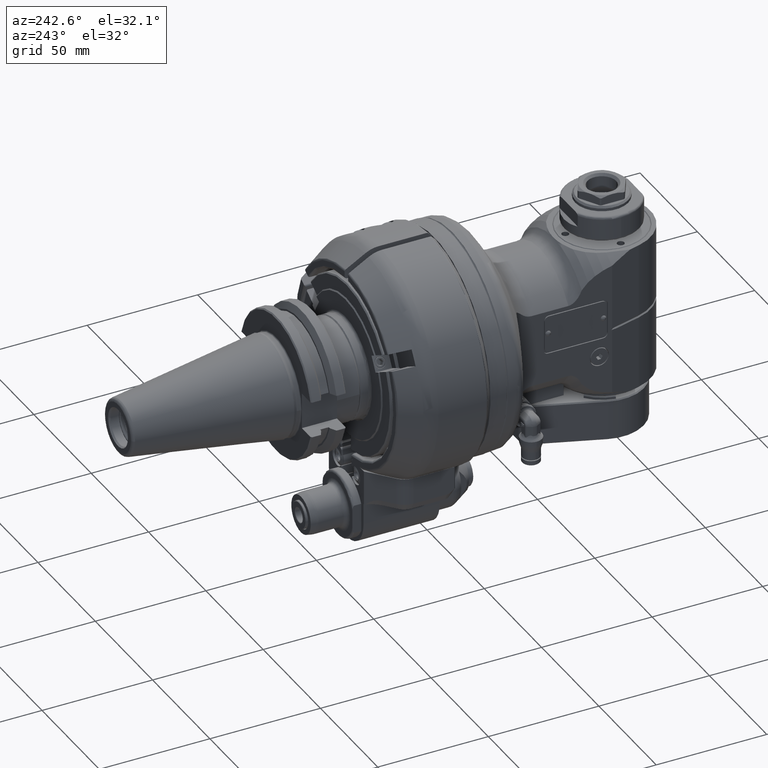
[diagram: clean part render]
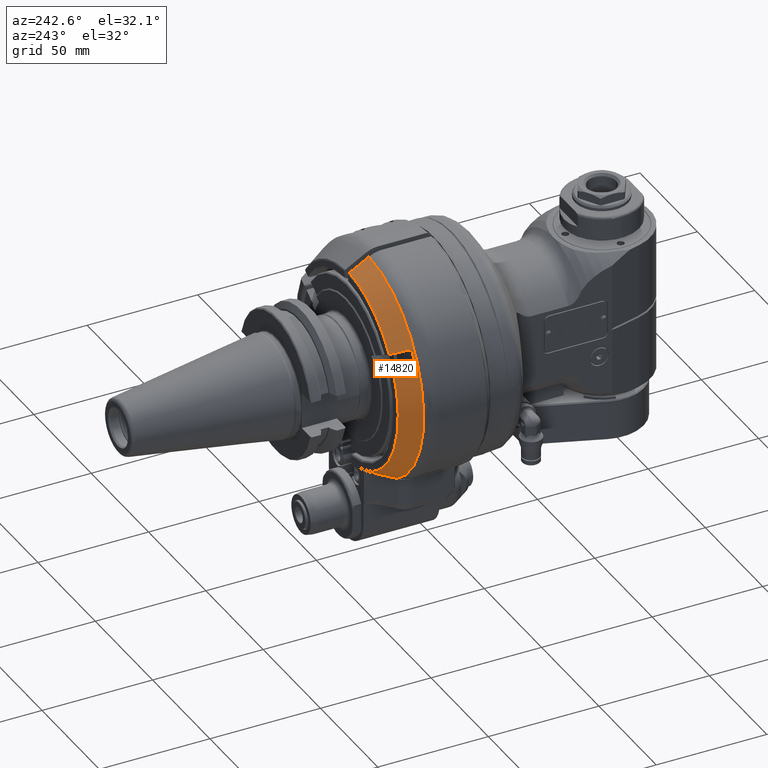
[diagram: same view with one face highlighted and labeled with its STEP entity id]
A machine part, auxiliary view. The second image highlights one B-rep face of the part: STEP entity #14820.
In plain terms, the highlighted conical surface has half-angle 30 deg.
Its self-contained STEP definition (entity closure, byte-faithful):
#195=B_SPLINE_CURVE_WITH_KNOTS('',3,(#27565,#27566,#27567,#27568,#27569,
#27570,#27571,#27572,#27573,#27574),.UNSPECIFIED.,.F.,.F.,(4,3,3,4),(0.,
0.3333333333333,0.6666666666667,0.999997659970445),.UNSPECIFIED.);
#199=B_SPLINE_CURVE_WITH_KNOTS('',3,(#27707,#27708,#27709,#27710,#27711,
#27712,#27713,#27714,#27715,#27716),.UNSPECIFIED.,.F.,.F.,(4,3,3,4),(7.66596114732898E-6,
0.3333333333333,0.6666666666667,1.),.UNSPECIFIED.);
#200=B_SPLINE_CURVE_WITH_KNOTS('',3,(#27720,#27721,#27722,#27723,#27724,
#27725,#27726,#27727,#27728,#27729),.UNSPECIFIED.,.F.,.F.,(4,3,3,4),(0.,
0.3333333333333,0.6666666666667,0.999992857018884),.UNSPECIFIED.);
#451=(
BOUNDED_CURVE()
B_SPLINE_CURVE(2,(#27641,#27642,#27643),.UNSPECIFIED.,.F.,.F.)
B_SPLINE_CURVE_WITH_KNOTS((3,3),(2.8844916667244,4.73034461921109),
 .UNSPECIFIED.)
CURVE()
GEOMETRIC_REPRESENTATION_ITEM()
RATIONAL_B_SPLINE_CURVE((1.03298555452386,1.03049774868244,1.01131829580632))
REPRESENTATION_ITEM('')
);
#764=CONICAL_SURFACE('',#16422,46.84048999,0.523598775598299);
#3668=FACE_OUTER_BOUND('',#4681,.T.);
#4681=EDGE_LOOP('',(#12548,#12549,#12550,#12551,#12552,#12553,#12554,#12555));
#5605=CIRCLE('',#16419,49.39230484541);
#5607=CIRCLE('',#16423,44.28867513459);
#5608=CIRCLE('',#16424,48.90747728811);
#5609=CIRCLE('',#16425,44.28867513459);
#6870=VERTEX_POINT('',#27562);
#6871=VERTEX_POINT('',#27564);
#6874=VERTEX_POINT('',#27588);
#6875=VERTEX_POINT('',#27640);
#6876=VERTEX_POINT('',#27704);
#6877=VERTEX_POINT('',#27706);
#6878=VERTEX_POINT('',#27717);
#6879=VERTEX_POINT('',#27719);
#8839=EDGE_CURVE('',#6871,#6870,#195,.T.);
#8844=EDGE_CURVE('',#6871,#6874,#5605,.T.);
#8845=EDGE_CURVE('',#6874,#6875,#451,.T.);
#8848=EDGE_CURVE('',#6876,#6870,#5607,.T.);
#8849=EDGE_CURVE('',#6876,#6877,#199,.T.);
#8850=EDGE_CURVE('',#6878,#6877,#5608,.T.);
#8851=EDGE_CURVE('',#6878,#6879,#200,.T.);
#8852=EDGE_CURVE('',#6875,#6879,#5609,.T.);
#12548=ORIENTED_EDGE('',*,*,#8845,.F.);
#12549=ORIENTED_EDGE('',*,*,#8844,.F.);
#12550=ORIENTED_EDGE('',*,*,#8839,.T.);
#12551=ORIENTED_EDGE('',*,*,#8848,.F.);
#12552=ORIENTED_EDGE('',*,*,#8849,.T.);
#12553=ORIENTED_EDGE('',*,*,#8850,.F.);
#12554=ORIENTED_EDGE('',*,*,#8851,.T.);
#12555=ORIENTED_EDGE('',*,*,#8852,.F.);
#14820=ADVANCED_FACE('',(#3668),#764,.T.);
#16419=AXIS2_PLACEMENT_3D('',#27638,#20150,#20151);
#16422=AXIS2_PLACEMENT_3D('',#27703,#20156,#20157);
#16423=AXIS2_PLACEMENT_3D('',#27705,#20158,#20159);
#16424=AXIS2_PLACEMENT_3D('',#27718,#20160,#20161);
#16425=AXIS2_PLACEMENT_3D('',#27730,#20162,#20163);
#20150=DIRECTION('center_axis',(0.,-1.,0.));
#20151=DIRECTION('ref_axis',(-0.0303691031364992,0.,0.999538752412674));
#20156=DIRECTION('center_axis',(0.,-1.,0.));
#20157=DIRECTION('ref_axis',(0.,0.,1.));
#20158=DIRECTION('center_axis',(0.,1.,0.));
#20159=DIRECTION('ref_axis',(-0.823803402997795,0.,0.566875606468697));
#20160=DIRECTION('center_axis',(0.,1.,0.));
#20161=DIRECTION('ref_axis',(-0.899586791598834,0.,0.436742034135616));
#20162=DIRECTION('center_axis',(0.,1.,0.));
#20163=DIRECTION('ref_axis',(-0.317304540867809,0.,-0.948323693864426));
#27562=CARTESIAN_POINT('',(-1.49999994161814,39.0000000307714,44.2632663040608));
#27564=CARTESIAN_POINT('',(-1.50000010664755,30.1602661977814,49.3695157362103));
#27565=CARTESIAN_POINT('Ctrl Pts',(-1.5,30.16027835559,49.36950871544));
#27566=CARTESIAN_POINT('Ctrl Pts',(-1.5,31.18982877885,48.77482320417));
#27567=CARTESIAN_POINT('Ctrl Pts',(-1.5,32.2036186971448,48.1892313102351));
#27568=CARTESIAN_POINT('Ctrl Pts',(-1.5,33.2013919082089,47.612880877291));
#27569=CARTESIAN_POINT('Ctrl Pts',(-1.5,34.1991651192732,47.0365304443467));
#27570=CARTESIAN_POINT('Ctrl Pts',(-1.5,35.1809216231068,46.4694214723933));
#27571=CARTESIAN_POINT('Ctrl Pts',(-1.5,36.1472838686536,45.9111942687465));
#27572=CARTESIAN_POINT('Ctrl Pts',(-1.5,37.1136393302515,45.3529709839044));
#27573=CARTESIAN_POINT('Ctrl Pts',(-1.5,38.0646007497001,44.8036293426678));
#27574=CARTESIAN_POINT('Ctrl Pts',(-1.5,39.0000000311363,44.2632663046979));
#27588=CARTESIAN_POINT('',(-25.9923022789438,30.1602540400476,-42.0000000006684));
#27638=CARTESIAN_POINT('Origin',(0.,30.16025403784,0.));
#27640=CARTESIAN_POINT('',(-14.0529977328341,38.9999999985392,-41.999999999679));
#27641=CARTESIAN_POINT('Ctrl Pts',(-25.9923022783559,30.1602540415666,-42.));
#27642=CARTESIAN_POINT('Ctrl Pts',(-19.6974303646479,35.8978898913525,-42.));
#27643=CARTESIAN_POINT('Ctrl Pts',(-14.0529977330381,38.9999999978967,-42.));
#27703=CARTESIAN_POINT('Origin',(0.,34.58012701892,0.));
#27704=CARTESIAN_POINT('',(-36.4851322129092,39.0000574701093,25.1061533734197));
#27705=CARTESIAN_POINT('Origin',(0.,39.,0.));
#27706=CARTESIAN_POINT('',(-40.4965205788,31.,27.42212894174));
#27707=CARTESIAN_POINT('Ctrl Pts',(-36.4851325523638,39.0000575278077,25.106152984854));
#27708=CARTESIAN_POINT('Ctrl Pts',(-36.9021284692853,38.1686740178928,25.3469056897396));
#27709=CARTESIAN_POINT('Ctrl Pts',(-37.3285997235782,37.3183138636494,25.5931289832072));
#27710=CARTESIAN_POINT('Ctrl Pts',(-37.7642990141934,36.4494677703336,25.8446800859296));
#27711=CARTESIAN_POINT('Ctrl Pts',(-38.2000083252007,35.5806016949368,26.0962369739281));
#27712=CARTESIAN_POINT('Ctrl Pts',(-38.6449460969957,34.6932488301632,26.3531219162466));
#27713=CARTESIAN_POINT('Ctrl Pts',(-39.1001961495135,33.7852448292439,26.6159606566164));
#27714=CARTESIAN_POINT('Ctrl Pts',(-39.5554462020312,32.8772408283249,26.8787993969861));
#27715=CARTESIAN_POINT('Ctrl Pts',(-40.0210085352717,31.94858569126,27.147591935407));
#27716=CARTESIAN_POINT('Ctrl Pts',(-40.4965205787996,31.,27.4221289417408));
#27717=CARTESIAN_POINT('',(-43.9965205788,31.,21.35995111525));
#27718=CARTESIAN_POINT('Origin',(0.,31.,0.));
#27719=CARTESIAN_POINT('',(-39.9851346518321,39.0000535829498,19.0439758254266));
#27720=CARTESIAN_POINT('Ctrl Pts',(-43.9965205787991,31.,21.3599511152515));
#27721=CARTESIAN_POINT('Ctrl Pts',(-43.5214324221258,31.94774009122,21.0856588401073));
#27722=CARTESIAN_POINT('Ctrl Pts',(-43.0561505057139,32.8758359954399,20.8170282004178));
#27723=CARTESIAN_POINT('Ctrl Pts',(-42.6009808609627,33.7836797088564,20.5542358834937));
#27724=CARTESIAN_POINT('Ctrl Pts',(-42.1458112162113,34.6915234222732,20.2914435665696));
#27725=CARTESIAN_POINT('Ctrl Pts',(-41.7007538431207,35.5791149448868,20.0344895724109));
#27726=CARTESIAN_POINT('Ctrl Pts',(-41.2648942837493,36.4482807184811,19.782845938479));
#27727=CARTESIAN_POINT('Ctrl Pts',(-40.8290440643879,37.317427866771,19.5312076970043));
#27728=CARTESIAN_POINT('Ctrl Pts',(-40.4023912645511,38.168150055722,19.284879588168));
#27729=CARTESIAN_POINT('Ctrl Pts',(-39.9851344961698,39.0000536366557,19.0439762806218));
#27730=CARTESIAN_POINT('Origin',(0.,39.,0.));